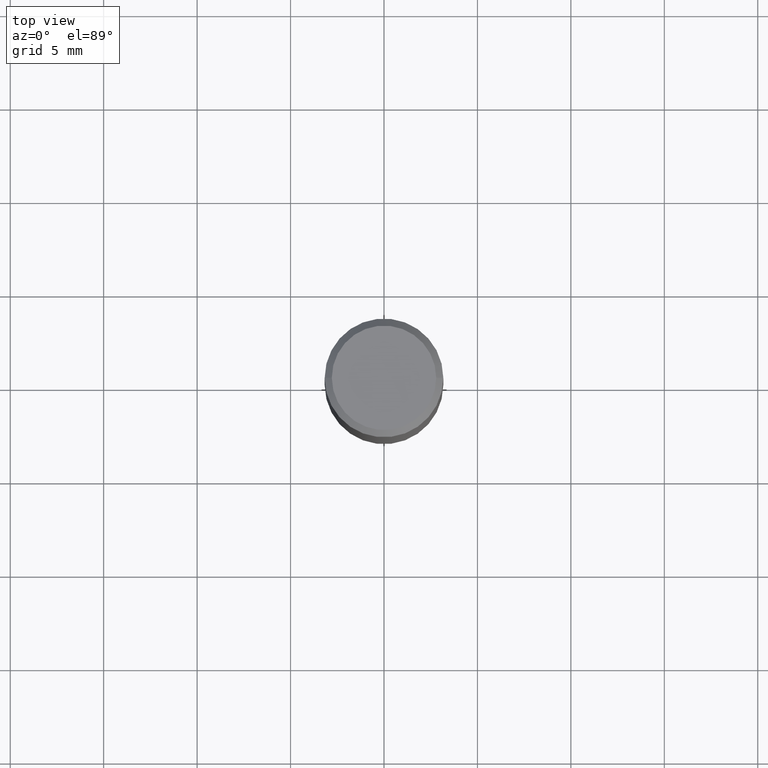
[diagram: clean part render]
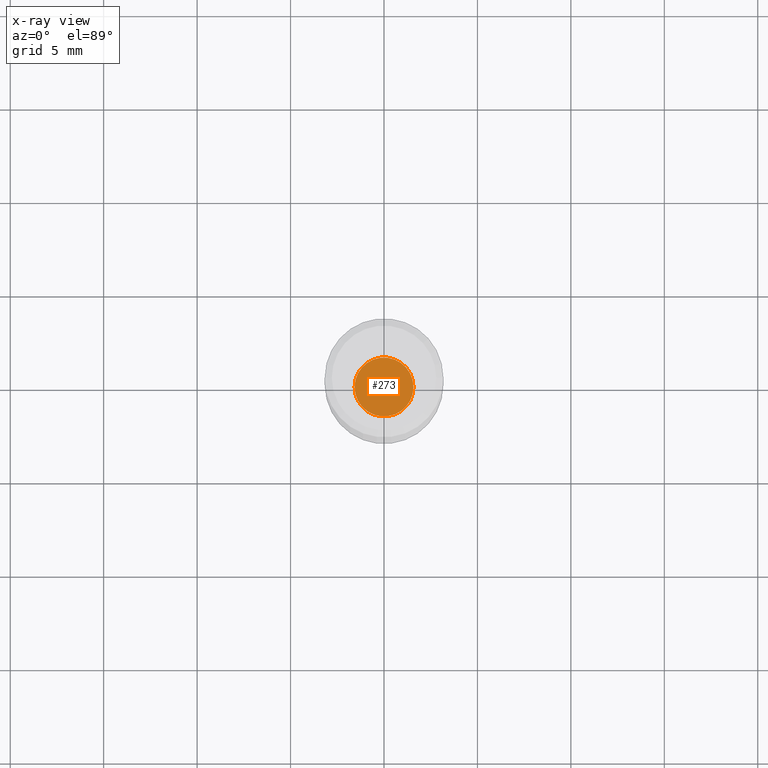
[diagram: x-ray — body ghosted, one internal face saturated and labeled with its STEP entity id]
A machine part, top view, then the same camera in x-ray: the body is ghosted and one INTERNAL B-rep face — a face not visible from any outside direction — is saturated and labeled: STEP entity #273.
In plain terms, the highlighted planar face has unit normal (-0, 0, 1).
Its self-contained STEP definition (entity closure, byte-faithful):
#9 = CARTESIAN_POINT ( 'NONE',  ( 0.06199999999999999956, -4.360860192215087886E-15, -1.125000000000000222 ) ) ;
#37 = ORIENTED_EDGE ( 'NONE', *, *, #74, .F. ) ;
#74 = EDGE_CURVE ( 'NONE', #312, #436, #453, .T. ) ;
#111 = DIRECTION ( 'NONE',  ( -2.445468806185136597E-29, 3.491481338843145583E-15, 1.000000000000000000 ) ) ;
#115 = DIRECTION ( 'NONE',  ( -2.438088387897960049E-29, 3.491481338843145188E-15, 1.000000000000000000 ) ) ;
#123 = DIRECTION ( 'NONE',  ( 1.000000000000000000, -6.982962677686265922E-15, 4.876176775795935793E-29 ) ) ;
#128 = DIRECTION ( 'NONE',  ( 1.000000000000000000, -6.982962677686262766E-15, 0.000000000000000000 ) ) ;
#192 = FACE_OUTER_BOUND ( 'NONE', #280, .T. ) ;
#222 = AXIS2_PLACEMENT_3D ( 'NONE', #445, #111, #321 ) ;
#226 = PLANE ( 'NONE',  #249 ) ;
#249 = AXIS2_PLACEMENT_3D ( 'NONE', #266, #115, #123 ) ;
#250 = CARTESIAN_POINT ( 'NONE',  ( 2.751152406958279232E-29, -3.927916506198540013E-15, -1.125000000000000222 ) ) ;
#262 = AXIS2_PLACEMENT_3D ( 'NONE', #250, #304, #128 ) ;
#263 = CARTESIAN_POINT ( 'NONE',  ( -0.06199999999999999956, -3.484730782853166700E-15, -1.125000000000000222 ) ) ;
#266 = CARTESIAN_POINT ( 'NONE',  ( 2.751152406958279232E-29, -3.927916506198539224E-15, -1.125000000000000222 ) ) ;
#273 = ADVANCED_FACE ( 'NONE', ( #192 ), #226, .F. ) ;
#280 = EDGE_LOOP ( 'NONE', ( #37, #443 ) ) ;
#304 = DIRECTION ( 'NONE',  ( -2.445468806185136597E-29, 3.491481338843145583E-15, 1.000000000000000000 ) ) ;
#312 = VERTEX_POINT ( 'NONE', #9 ) ;
#321 = DIRECTION ( 'NONE',  ( 1.000000000000000000, -6.982962677686262766E-15, 0.000000000000000000 ) ) ;
#328 = CIRCLE ( 'NONE', #222, 0.06199999999999999956 ) ;
#417 = EDGE_CURVE ( 'NONE', #436, #312, #328, .T. ) ;
#436 = VERTEX_POINT ( 'NONE', #263 ) ;
#443 = ORIENTED_EDGE ( 'NONE', *, *, #417, .F. ) ;
#445 = CARTESIAN_POINT ( 'NONE',  ( 2.751152406958279232E-29, -3.927916506198540013E-15, -1.125000000000000222 ) ) ;
#453 = CIRCLE ( 'NONE', #262, 0.06199999999999999956 ) ;